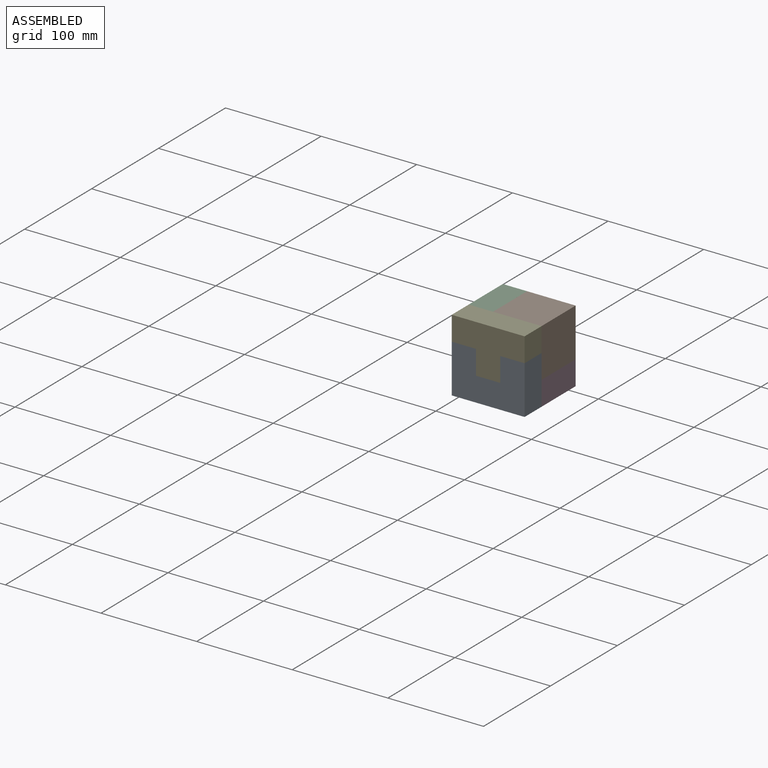
[diagram: assembled view]
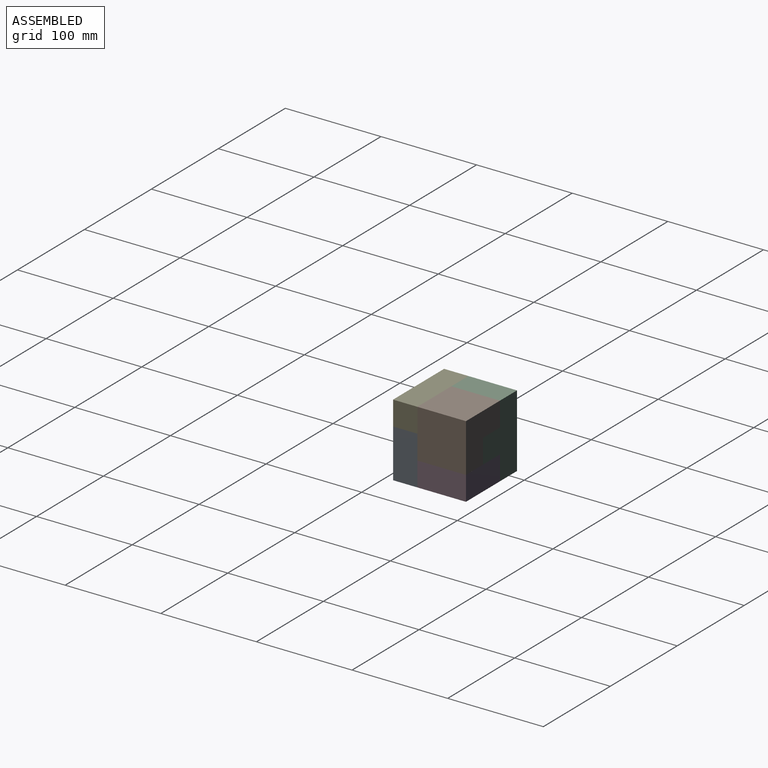
[diagram: assembled view, second angle]
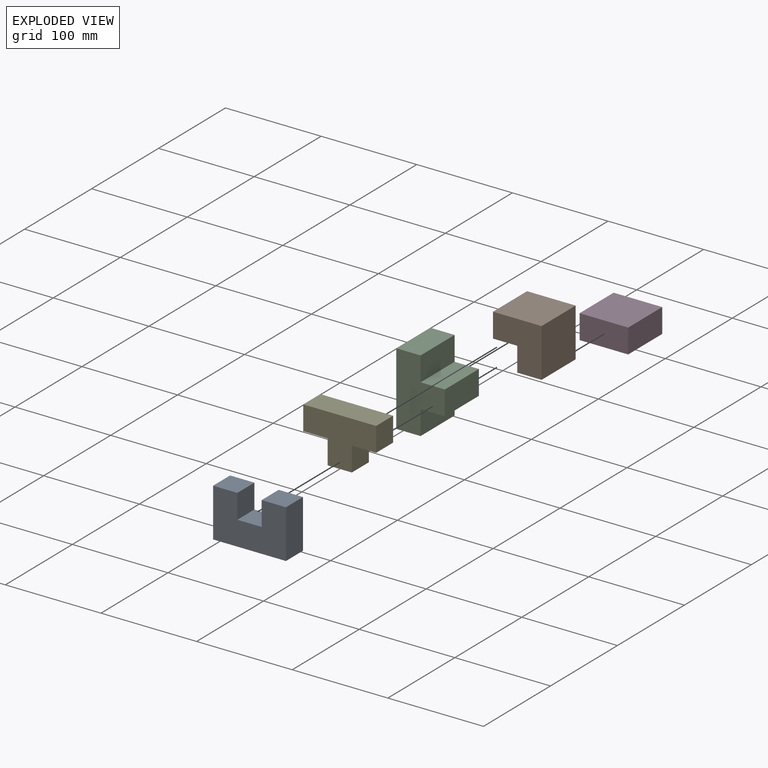
[diagram: exploded view]
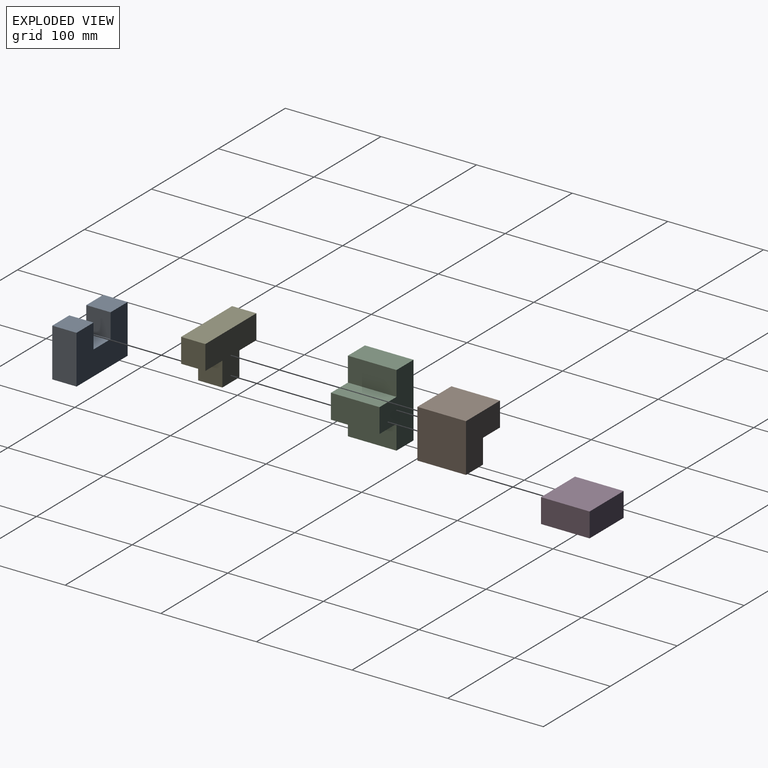
[diagram: exploded view, second angle]
ASSEMBLY  parts=5 mates=14
PART A: 10 faces, bbox 76.2x25.4x50.8 mm
  f0: plane 50.8x25.4mm, normal (-1,0,0), area 1290.3mm2, adj f1,f7,f8,f9
  f1: plane 76.2x25.4mm, normal (0,0,-1), area 1935.5mm2, adj f0,f2,f8,f9
  f2: plane 50.8x25.4mm, normal (1,0,0), area 1290.3mm2, adj f1,f3,f8,f9
  f3: plane 25.4x25.4mm, normal (0,0,1), area 645.2mm2, adj f2,f4,f8,f9
  f4: plane 25.4x25.4mm, normal (-1,0,0), area 645.2mm2, adj f3,f5,f8,f9
  f5: plane 25.4x25.4mm, normal (0,0,1), area 645.2mm2, adj f4,f6,f8,f9
  f6: plane 25.4x25.4mm, normal (1,0,0), area 645.2mm2, adj f5,f7,f8,f9
  f7: plane 25.4x25.4mm, normal (0,0,1), area 645.2mm2, adj f0,f6,f8,f9
  f8: plane 76.2x50.8mm, normal (0,-1,0), area 3225.8mm2, adj f0,f1,f2,f3,f4,f5,f6,f7
  f9: plane 76.2x50.8mm, normal (0,1,0), area 3225.8mm2, adj f0,f1,f2,f3,f4,f5,f6,f7
PART B: 8 faces, bbox 50.8x50.8x50.8 mm
  f0: plane 50.8x25.4mm, normal (0,0,-1), area 1290.3mm2, adj f1,f5,f6,f7
  f1: plane 50.8x25.4mm, normal (-1,0,0), area 1290.3mm2, adj f0,f2,f6,f7
  f2: plane 50.8x25.4mm, normal (0,0,-1), area 1290.3mm2, adj f1,f3,f6,f7
  f3: plane 50.8x50.8mm, normal (1,0,0), area 2580.6mm2, adj f2,f4,f6,f7
  f4: plane 50.8x50.8mm, normal (0,0,1), area 2580.6mm2, adj f3,f5,f6,f7
  f5: plane 50.8x25.4mm, normal (-1,0,0), area 1290.3mm2, adj f0,f4,f6,f7
  f6: plane 50.8x50.8mm, normal (0,-1,0), area 1935.5mm2, adj f0,f1,f2,f3,f4,f5
  f7: plane 50.8x50.8mm, normal (0,1,0), area 1935.5mm2, adj f0,f1,f2,f3,f4,f5
PART C: 10 faces, bbox 50.8x50.8x76.2 mm
  f0: plane 76.2x50.8mm, normal (-1,0,0), area 3871mm2, adj f1,f7,f8,f9
  f1: plane 50.8x25.4mm, normal (0,0,-1), area 1290.3mm2, adj f0,f2,f8,f9
  f2: plane 50.8x25.4mm, normal (1,0,0), area 1290.3mm2, adj f1,f3,f8,f9
  f3: plane 50.8x25.4mm, normal (0,0,-1), area 1290.3mm2, adj f2,f4,f8,f9
  f4: plane 50.8x25.4mm, normal (1,0,0), area 1290.3mm2, adj f3,f5,f8,f9
  f5: plane 50.8x25.4mm, normal (0,0,1), area 1290.3mm2, adj f4,f6,f8,f9
  f6: plane 50.8x25.4mm, normal (1,0,0), area 1290.3mm2, adj f5,f7,f8,f9
  f7: plane 50.8x25.4mm, normal (0,0,1), area 1290.3mm2, adj f0,f6,f8,f9
  f8: plane 76.2x50.8mm, normal (0,-1,0), area 2580.6mm2, adj f0,f1,f2,f3,f4,f5,f6,f7
  f9: plane 76.2x50.8mm, normal (0,1,0), area 2580.6mm2, adj f0,f1,f2,f3,f4,f5,f6,f7
PART D: 6 faces, bbox 50.8x50.8x25.4 mm
  f0: plane 50.8x25.4mm, normal (1,0,0), area 1290.3mm2, adj f1,f3,f4,f5
  f1: plane 50.8x50.8mm, normal (0,0,1), area 2580.6mm2, adj f0,f2,f4,f5
  f2: plane 50.8x25.4mm, normal (-1,0,0), area 1290.3mm2, adj f1,f3,f4,f5
  f3: plane 50.8x50.8mm, normal (0,0,-1), area 2580.6mm2, adj f0,f2,f4,f5
  f4: plane 50.8x25.4mm, normal (0,1,0), area 1290.3mm2, adj f0,f1,f2,f3
  f5: plane 50.8x25.4mm, normal (0,-1,0), area 1290.3mm2, adj f0,f1,f2,f3
PART E: 10 faces, bbox 76.2x25.4x50.8 mm
  f0: plane 25.4x25.4mm, normal (0,0,-1), area 645.2mm2, adj f1,f7,f8,f9
  f1: plane 25.4x25.4mm, normal (-1,0,0), area 645.2mm2, adj f0,f2,f8,f9
  f2: plane 25.4x25.4mm, normal (0,0,-1), area 645.2mm2, adj f1,f3,f8,f9
  f3: plane 25.4x25.4mm, normal (1,0,0), area 645.2mm2, adj f2,f4,f8,f9
  f4: plane 25.4x25.4mm, normal (0,0,-1), area 645.2mm2, adj f3,f5,f8,f9
  f5: plane 25.4x25.4mm, normal (1,0,0), area 645.2mm2, adj f4,f6,f8,f9
  f6: plane 76.2x25.4mm, normal (0,0,1), area 1935.5mm2, adj f5,f7,f8,f9
  f7: plane 25.4x25.4mm, normal (-1,0,0), area 645.2mm2, adj f0,f6,f8,f9
  f8: plane 76.2x50.8mm, normal (0,-1,0), area 2580.6mm2, adj f0,f1,f2,f3,f4,f5,f6,f7
  f9: plane 76.2x50.8mm, normal (0,1,0), area 2580.6mm2, adj f0,f1,f2,f3,f4,f5,f6,f7
PLACE A t=(28.98,-55.89,-9.34)mm
PLACE B t=(54.38,-5.09,16.06)mm
PLACE C t=(28.98,-5.09,16.06)mm
PLACE D t=(54.38,-55.89,-9.34)mm
PLACE E t=(28.98,-55.89,16.06)mm
MATE planar E.f3 <-> A.f4  axis (1,0,0) through (54.38,-68.59,3.36)mm
MATE planar D.f5 <-> A.f9  axis (0,-1,0) through (54.38,-55.89,-22.04)mm
MATE planar B.f6 <-> E.f9  axis (0,-1,0) through (79.78,-55.89,16.06)mm
MATE planar C.f2 <-> D.f2  axis (1,0,0) through (28.98,-30.49,-22.04)mm
MATE planar C.f8 <-> A.f9  axis (0,-1,0) through (3.58,-55.89,3.36)mm
MATE planar B.f6 <-> E.f9  axis (0,-1,0) through (58.61,-55.89,20.3)mm
MATE planar D.f1 <-> B.f2  axis (0,0,1) through (79.78,-30.49,-9.34)mm
MATE planar B.f1 <-> C.f4  axis (-1,0,0) through (54.38,-30.49,3.36)mm
MATE planar E.f4 <-> A.f3  axis (0,0,-1) through (67.08,-68.59,16.06)mm
MATE planar C.f5 <-> B.f0  axis (0,0,1) through (41.68,-30.49,16.06)mm
MATE planar B.f4 <-> E.f6  axis (0,0,1) through (54.38,-30.49,41.46)mm
MATE planar E.f8 <-> A.f8  axis (0,-1,0) through (41.68,-81.29,22.41)mm
MATE planar C.f6 <-> B.f5  axis (1,0,0) through (28.98,-5.09,28.76)mm
MATE planar E.f5 <-> B.f3  axis (1,0,0) through (79.78,-68.59,41.46)mm
